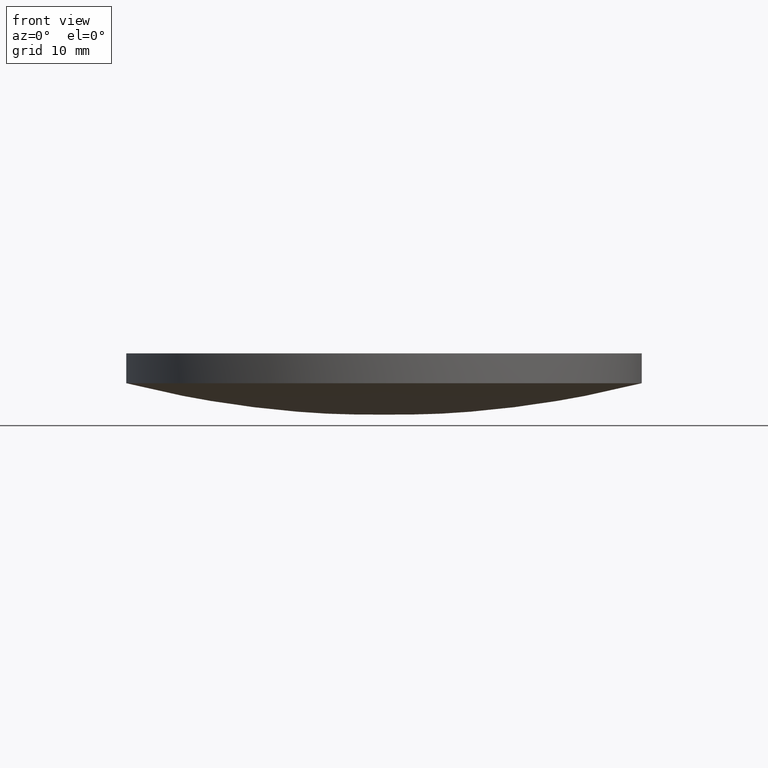
[diagram: clean part render]
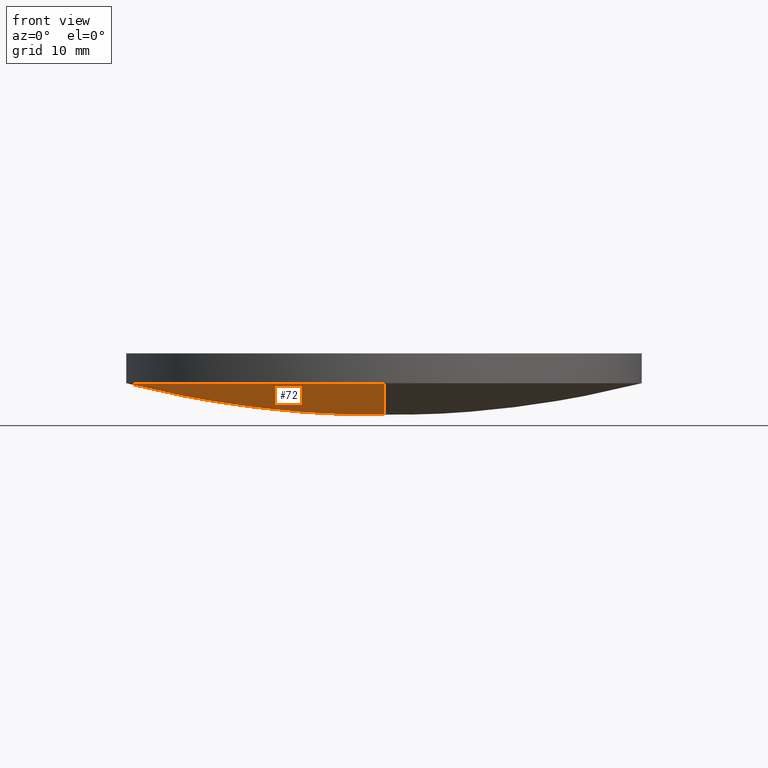
[diagram: same view with one face highlighted and labeled with its STEP entity id]
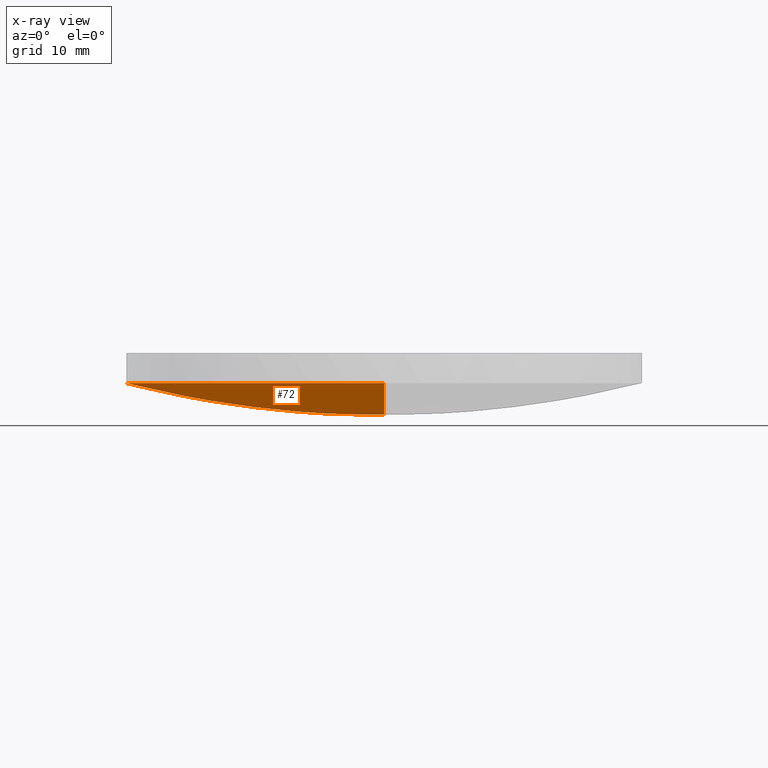
[diagram: x-ray of the same camera — body ghosted, the highlighted face saturated]
A machine part, front view. The second image highlights one B-rep face of the part: STEP entity #72.
The next image is the same camera in x-ray: the body ghosted, the highlighted face saturated — about 0% of this face is hidden behind the body in this view.
In plain terms, the highlighted face is a freeform B-spline surface patch.
Its self-contained STEP definition (entity closure, byte-faithful):
#5 = EDGE_CURVE ( 'NONE', #98, #102, #193, .T. ) ;
#8 = CIRCLE ( 'NONE', #112, 25.39999999999999900 ) ;
#10 = CARTESIAN_POINT ( 'NONE',  ( -16.65174403639160500, 25.69844065608493700, 4.272342237781631800 ) ) ;
#16 = DIRECTION ( 'NONE',  ( -0.0000000000000000000, -0.0000000000000000000, -1.000000000000000000 ) ) ;
#17 = CARTESIAN_POINT ( 'NONE',  ( 9.992007221626412800E-016, 4.884981308350691100E-015, 3.158814409218349900 ) ) ;
#30 = CARTESIAN_POINT ( 'NONE',  ( -8.358203137555984000, -25.69844065608494100, 3.234681865602618200 ) ) ;
#32 = DIRECTION ( 'NONE',  ( 1.000000000000000000, 0.0000000000000000000, 0.0000000000000000000 ) ) ;
#43 = DIRECTION ( 'NONE',  ( 1.000000000000000000, 0.0000000000000000000, -2.832073977186420200E-016 ) ) ;
#51 = CIRCLE ( 'NONE', #85, 25.39999999999999900 ) ;
#58 = ORIENTED_EDGE ( 'NONE', *, *, #150, .T. ) ;
#61 = CARTESIAN_POINT ( 'NONE',  ( -17.37038757358139700, 8.748063978977391700, -0.01868238477916025700 ) ) ;
#72 = ADVANCED_FACE ( 'NONE', ( #159 ), #148, .T. ) ;
#79 = CARTESIAN_POINT ( 'NONE',  ( -4.857225732735059900E-014, 8.748063978977391700, -1.101125328599603400 ) ) ;
#81 = CARTESIAN_POINT ( 'NONE',  ( -25.82053995099674300, 8.748063978977391700, 2.129455122167320400 ) ) ;
#83 = CARTESIAN_POINT ( 'NONE',  ( -2.136858017711129700E-014, 25.39999999999998400, 3.158814409218356500 ) ) ;
#85 = AXIS2_PLACEMENT_3D ( 'NONE', #17, #16, #32 ) ;
#95 = AXIS2_PLACEMENT_3D ( 'NONE', #99, #43, #135 ) ;
#96 = CARTESIAN_POINT ( 'NONE',  ( -16.65174403639160500, -25.69844065608494100, 4.272342237781631800 ) ) ;
#97 = CARTESIAN_POINT ( 'NONE',  ( -4.510281037539698400E-014, -25.69844065608494400, 3.234681865602613300 ) ) ;
#98 = VERTEX_POINT ( 'NONE', #190 ) ;
#99 = CARTESIAN_POINT ( 'NONE',  ( 7.105427357601000300E-015, -7.105427357601000300E-015, 103.7000000000000000 ) ) ;
#102 = VERTEX_POINT ( 'NONE', #83 ) ;
#112 = AXIS2_PLACEMENT_3D ( 'NONE', #143, #215, #209 ) ;
#115 = CARTESIAN_POINT ( 'NONE',  ( -4.857225732735059900E-014, -8.748063978977395300, -1.101125328599601700 ) ) ;
#135 = DIRECTION ( 'NONE',  ( 0.0000000000000000000, -1.000000000000000000, 0.0000000000000000000 ) ) ;
#136 = CARTESIAN_POINT ( 'NONE',  ( -8.358203137555984000, 25.69844065608493700, 3.234681865602618200 ) ) ;
#137 = CARTESIAN_POINT ( 'NONE',  ( -24.75229872241552400, -25.69844065608494400, 6.331607511462000700 ) ) ;
#143 = CARTESIAN_POINT ( 'NONE',  ( 9.992007221626412800E-016, 4.884981308350691100E-015, 3.158814409218349900 ) ) ;
#148 =( BOUNDED_SURFACE ( )  B_SPLINE_SURFACE ( 3, 3, ( 
 ( #137, #96, #30, #97 ),
 ( #169, #172, #227, #115 ),
 ( #81, #61, #186, #79 ),
 ( #206, #10, #136, #155 ) ),
 .UNSPECIFIED., .F., .F., .T. ) 
 B_SPLINE_SURFACE_WITH_KNOTS ( ( 4, 4 ),
 ( 4, 4 ),
 ( 0.0000000000000000000, 1.000000000000000000 ),
 ( 0.0000000000000000000, 1.000000000000000000 ),
 .UNSPECIFIED. ) 
 GEOMETRIC_REPRESENTATION_ITEM ( )  RATIONAL_B_SPLINE_SURFACE ( (
 ( 1.000000000000000000, 0.9948424130835996600, 0.9948424130835996600, 1.000000000000000000),
 ( 0.9792048738951938400, 0.9741545396491165800, 0.9741545396491165800, 0.9792048738951938400),
 ( 0.9792048738951938400, 0.9741545396491165800, 0.9741545396491165800, 0.9792048738951938400),
 ( 1.000000000000000000, 0.9948424130835996600, 0.9948424130835996600, 1.000000000000000000) ) ) 
 REPRESENTATION_ITEM ( '' )  SURFACE ( )  );
#150 = EDGE_CURVE ( 'NONE', #98, #181, #51, .T. ) ;
#155 = CARTESIAN_POINT ( 'NONE',  ( -4.510281037539698400E-014, 25.69844065608494100, 3.234681865602613300 ) ) ;
#159 = FACE_OUTER_BOUND ( 'NONE', #218, .T. ) ;
#169 = CARTESIAN_POINT ( 'NONE',  ( -25.82053995099674300, -8.748063978977395300, 2.129455122167322100 ) ) ;
#172 = CARTESIAN_POINT ( 'NONE',  ( -17.37038757358139700, -8.748063978977395300, -0.01868238477915851900 ) ) ;
#173 = EDGE_CURVE ( 'NONE', #181, #102, #8, .T. ) ;
#181 = VERTEX_POINT ( 'NONE', #230 ) ;
#186 = CARTESIAN_POINT ( 'NONE',  ( -8.718920228462314600, 8.748063978977391700, -1.101125328599599200 ) ) ;
#190 = CARTESIAN_POINT ( 'NONE',  ( -2.136858017711129700E-014, -25.39999999999998800, 3.158814409218356500 ) ) ;
#193 = CIRCLE ( 'NONE', #95, 103.6999999999999900 ) ;
#204 = ORIENTED_EDGE ( 'NONE', *, *, #5, .F. ) ;
#206 = CARTESIAN_POINT ( 'NONE',  ( -24.75229872241552400, 25.69844065608494100, 6.331607511462000700 ) ) ;
#209 = DIRECTION ( 'NONE',  ( 1.000000000000000000, 0.0000000000000000000, 0.0000000000000000000 ) ) ;
#211 = ORIENTED_EDGE ( 'NONE', *, *, #173, .T. ) ;
#215 = DIRECTION ( 'NONE',  ( -0.0000000000000000000, -0.0000000000000000000, -1.000000000000000000 ) ) ;
#218 = EDGE_LOOP ( 'NONE', ( #204, #58, #211 ) ) ;
#227 = CARTESIAN_POINT ( 'NONE',  ( -8.718920228462314600, -8.748063978977395300, -1.101125328599597200 ) ) ;
#230 = CARTESIAN_POINT ( 'NONE',  ( -25.39999999999999900, 7.995584178184967200E-015, 3.158814409218349900 ) ) ;